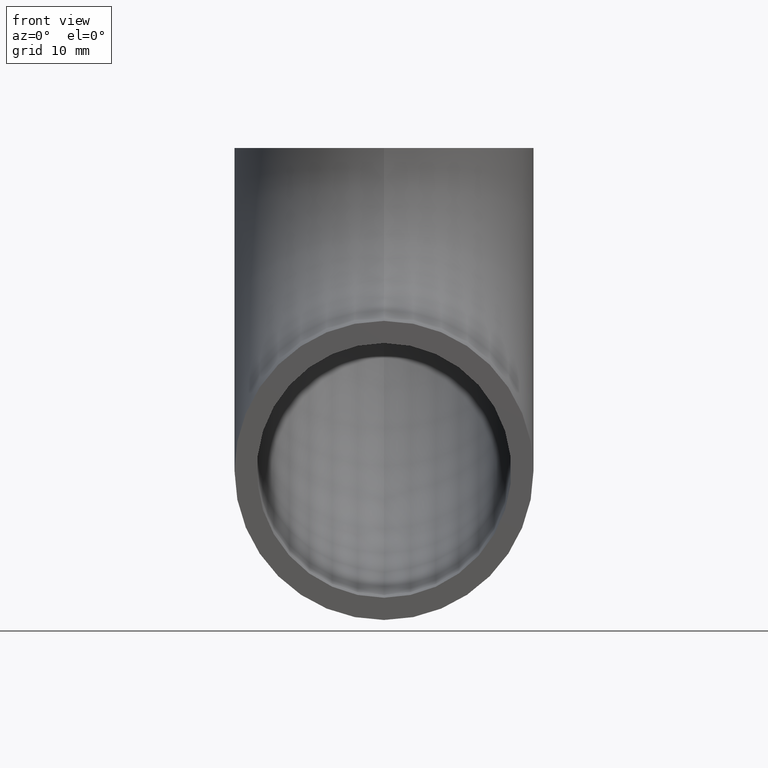
[diagram: clean part render]
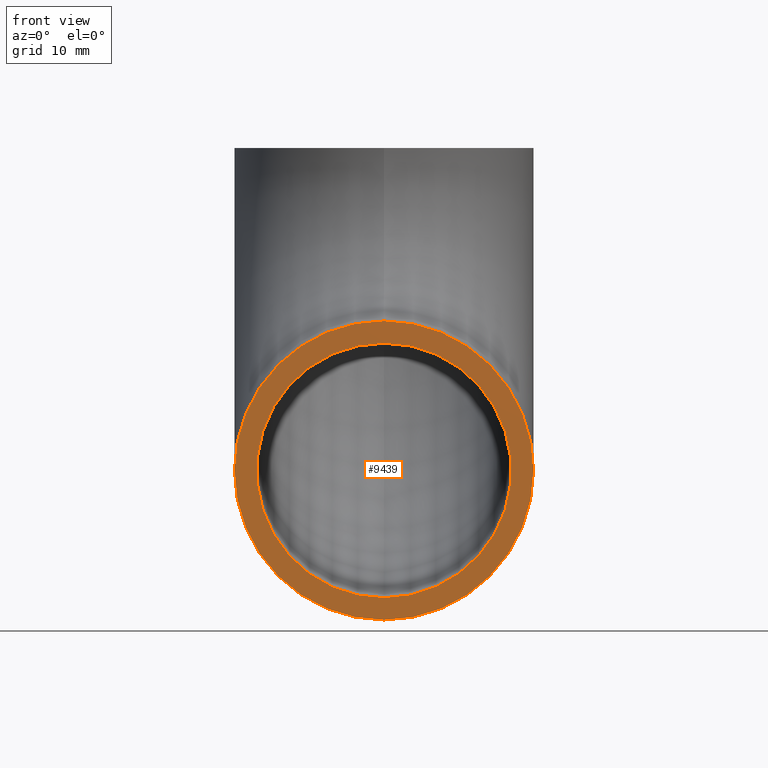
[diagram: same view with one face highlighted and labeled with its STEP entity id]
A machine part, front view. The second image highlights one B-rep face of the part: STEP entity #9439.
In plain terms, the highlighted planar face has unit normal (0, 1, 0).
Its self-contained STEP definition (entity closure, byte-faithful):
#279 = ORIENTED_EDGE ( 'NONE', *, *, #1679, .T. ) ;
#639 = VERTEX_POINT ( 'NONE', #5416 ) ;
#648 = CIRCLE ( 'NONE', #4970, 11.44999999999999800 ) ;
#808 = DIRECTION ( 'NONE',  ( 0.0000000000000000000, 1.000000000000000000, 0.0000000000000000000 ) ) ;
#963 = VERTEX_POINT ( 'NONE', #1419 ) ;
#1419 = CARTESIAN_POINT ( 'NONE',  ( 0.0000000000000000000, 0.0000000000000000000, -40.45000000000000300 ) ) ;
#1531 = CARTESIAN_POINT ( 'NONE',  ( 0.0000000000000000000, 0.0000000000000000000, -42.45000000000000300 ) ) ;
#1603 = EDGE_CURVE ( 'NONE', #963, #3667, #648, .T. ) ;
#1679 = EDGE_CURVE ( 'NONE', #3667, #963, #2719, .T. ) ;
#1792 = DIRECTION ( 'NONE',  ( 0.0000000000000000000, 1.000000000000000000, 0.0000000000000000000 ) ) ;
#1897 = AXIS2_PLACEMENT_3D ( 'NONE', #9398, #5817, #8507 ) ;
#2317 = DIRECTION ( 'NONE',  ( 0.0000000000000000000, 0.0000000000000000000, 1.000000000000000000 ) ) ;
#2385 = AXIS2_PLACEMENT_3D ( 'NONE', #10730, #6396, #4540 ) ;
#2719 = CIRCLE ( 'NONE', #2385, 11.44999999999999800 ) ;
#3131 = ORIENTED_EDGE ( 'NONE', *, *, #11219, .F. ) ;
#3633 = CARTESIAN_POINT ( 'NONE',  ( 0.0000000000000000000, 0.0000000000000000000, -29.00000000000000000 ) ) ;
#3667 = VERTEX_POINT ( 'NONE', #6956 ) ;
#4372 = DIRECTION ( 'NONE',  ( 0.0000000000000000000, 0.0000000000000000000, 1.000000000000000000 ) ) ;
#4482 = CIRCLE ( 'NONE', #9761, 13.44999999999999900 ) ;
#4540 = DIRECTION ( 'NONE',  ( 0.0000000000000000000, 0.0000000000000000000, 1.000000000000000000 ) ) ;
#4699 = VERTEX_POINT ( 'NONE', #1531 ) ;
#4809 = EDGE_LOOP ( 'NONE', ( #3131, #5584 ) ) ;
#4970 = AXIS2_PLACEMENT_3D ( 'NONE', #7503, #10193, #2317 ) ;
#4998 = CIRCLE ( 'NONE', #1897, 13.44999999999999900 ) ;
#5416 = CARTESIAN_POINT ( 'NONE',  ( 0.0000000000000000000, 0.0000000000000000000, -15.55000000000000100 ) ) ;
#5584 = ORIENTED_EDGE ( 'NONE', *, *, #7162, .F. ) ;
#5817 = DIRECTION ( 'NONE',  ( 0.0000000000000000000, 1.000000000000000000, 0.0000000000000000000 ) ) ;
#6174 = CARTESIAN_POINT ( 'NONE',  ( 0.0000000000000000000, 0.0000000000000000000, -29.00000000000000000 ) ) ;
#6396 = DIRECTION ( 'NONE',  ( 0.0000000000000000000, 1.000000000000000000, 0.0000000000000000000 ) ) ;
#6401 = FACE_BOUND ( 'NONE', #8142, .T. ) ;
#6956 = CARTESIAN_POINT ( 'NONE',  ( 0.0000000000000000000, 0.0000000000000000000, -17.55000000000000400 ) ) ;
#7080 = PLANE ( 'NONE',  #9546 ) ;
#7162 = EDGE_CURVE ( 'NONE', #4699, #639, #4482, .T. ) ;
#7503 = CARTESIAN_POINT ( 'NONE',  ( 0.0000000000000000000, 0.0000000000000000000, -29.00000000000000000 ) ) ;
#7581 = ORIENTED_EDGE ( 'NONE', *, *, #1603, .T. ) ;
#8142 = EDGE_LOOP ( 'NONE', ( #279, #7581 ) ) ;
#8507 = DIRECTION ( 'NONE',  ( 0.0000000000000000000, 0.0000000000000000000, 1.000000000000000000 ) ) ;
#9003 = DIRECTION ( 'NONE',  ( 0.0000000000000000000, -0.0000000000000000000, 1.000000000000000000 ) ) ;
#9398 = CARTESIAN_POINT ( 'NONE',  ( 0.0000000000000000000, 0.0000000000000000000, -29.00000000000000000 ) ) ;
#9439 = ADVANCED_FACE ( 'NONE', ( #6401, #9605 ), #7080, .F. ) ;
#9546 = AXIS2_PLACEMENT_3D ( 'NONE', #3633, #1792, #9003 ) ;
#9605 = FACE_OUTER_BOUND ( 'NONE', #4809, .T. ) ;
#9761 = AXIS2_PLACEMENT_3D ( 'NONE', #6174, #808, #4372 ) ;
#10193 = DIRECTION ( 'NONE',  ( 0.0000000000000000000, 1.000000000000000000, 0.0000000000000000000 ) ) ;
#10730 = CARTESIAN_POINT ( 'NONE',  ( 0.0000000000000000000, 0.0000000000000000000, -29.00000000000000000 ) ) ;
#11219 = EDGE_CURVE ( 'NONE', #639, #4699, #4998, .T. ) ;